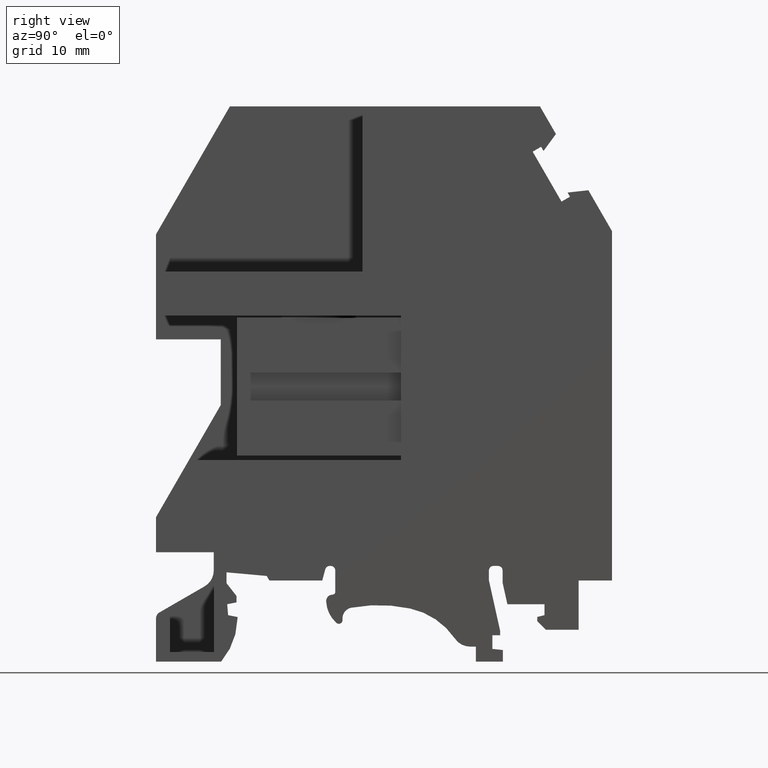
[diagram: clean part render]
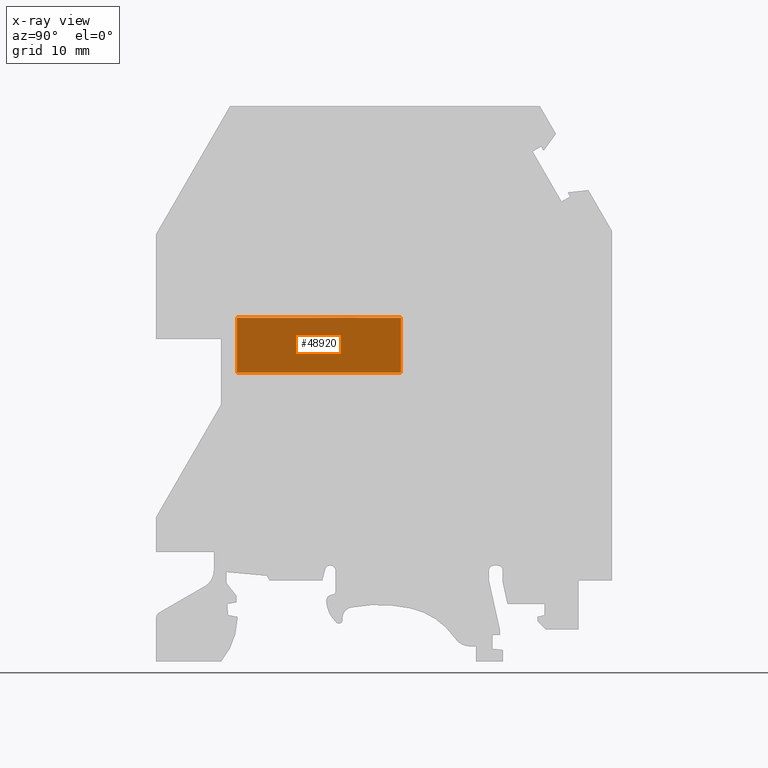
[diagram: x-ray — body ghosted, one internal face saturated and labeled with its STEP entity id]
A machine part, right view, then the same camera in x-ray: the body is ghosted and one INTERNAL B-rep face — a face not visible from any outside direction — is saturated and labeled: STEP entity #48920.
In plain terms, the highlighted planar face has unit normal (-1, 0, -0).
Its self-contained STEP definition (entity closure, byte-faithful):
#3250=CARTESIAN_POINT('',(0.,-24.4050921699994,6.50000000000002));
#3260=DIRECTION('',(-1.,0.,6.12323399573676E-17));
#3270=VECTOR('',#3260,1.);
#3280=LINE('',#3250,#3270);
#3290=CARTESIAN_POINT('',(16.2499999999998,-24.4050921699994,
6.50000000000002));
#3300=VERTEX_POINT('',#3290);
#3310=CARTESIAN_POINT('',(-1.75000000000018,-24.4050921699994,
6.50000000000002));
#3320=VERTEX_POINT('',#3310);
#3330=EDGE_CURVE('',#3300,#3320,#3280,.T.);
#32540=CARTESIAN_POINT('',(-1.75000000000018,0.,6.50000000000002));
#32550=DIRECTION('',(1.22464679914735E-16,1.,1.22464679914735E-16));
#32560=VECTOR('',#32550,1.);
#32570=LINE('',#32540,#32560);
#32580=CARTESIAN_POINT('',(-1.75000000000017,-30.4050921699994,
6.50000000000002));
#32590=VERTEX_POINT('',#32580);
#32600=EDGE_CURVE('',#32590,#3320,#32570,.T.);
#40320=CARTESIAN_POINT('',(16.2499999999998,-33.5050921699994,
6.50000000000002));
#40330=DIRECTION('',(1.22464679914735E-16,-1.22464679914735E-16,1.));
#40340=DIRECTION('',(1.49975978266186E-32,1.,1.22464679914735E-16));
#40350=AXIS2_PLACEMENT_3D('',#40320,#40330,#40340);
#40360=PLANE('',#40350);
#48740=ORIENTED_EDGE('',*,*,#32600,.F.);
#48750=ORIENTED_EDGE('',*,*,#3330,.T.);
#48760=CARTESIAN_POINT('',(16.2499999999998,0.,6.50000000000002));
#48770=DIRECTION('',(1.22464679914735E-16,1.,1.22464679914735E-16));
#48780=VECTOR('',#48770,1.);
#48790=LINE('',#48760,#48780);
#48800=CARTESIAN_POINT('',(16.2499999999998,-30.4050921699994,
6.50000000000002));
#48810=VERTEX_POINT('',#48800);
#48820=EDGE_CURVE('',#48810,#3300,#48790,.T.);
#48830=ORIENTED_EDGE('',*,*,#48820,.T.);
#48840=CARTESIAN_POINT('',(0.,-30.4050921699994,6.50000000000002));
#48850=DIRECTION('',(1.,-1.22464679914737E-16,-1.22464679914735E-16));
#48860=VECTOR('',#48850,1.);
#48870=LINE('',#48840,#48860);
#48880=EDGE_CURVE('',#32590,#48810,#48870,.T.);
#48890=ORIENTED_EDGE('',*,*,#48880,.T.);
#48900=EDGE_LOOP('',(#48890,#48830,#48750,#48740));
#48910=FACE_OUTER_BOUND('',#48900,.T.);
#48920=ADVANCED_FACE('',(#48910),#40360,.T.);